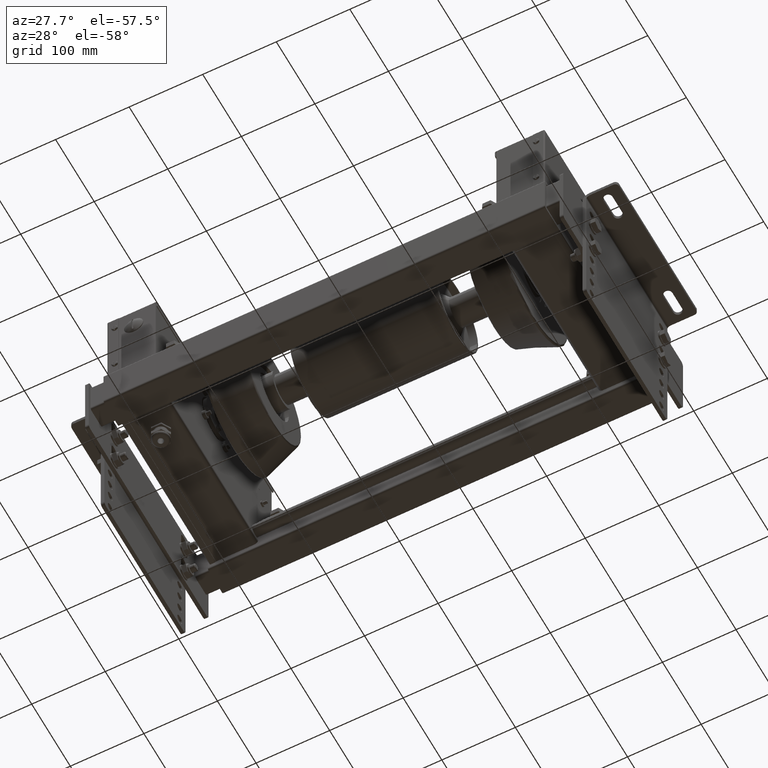
[diagram: clean part render]
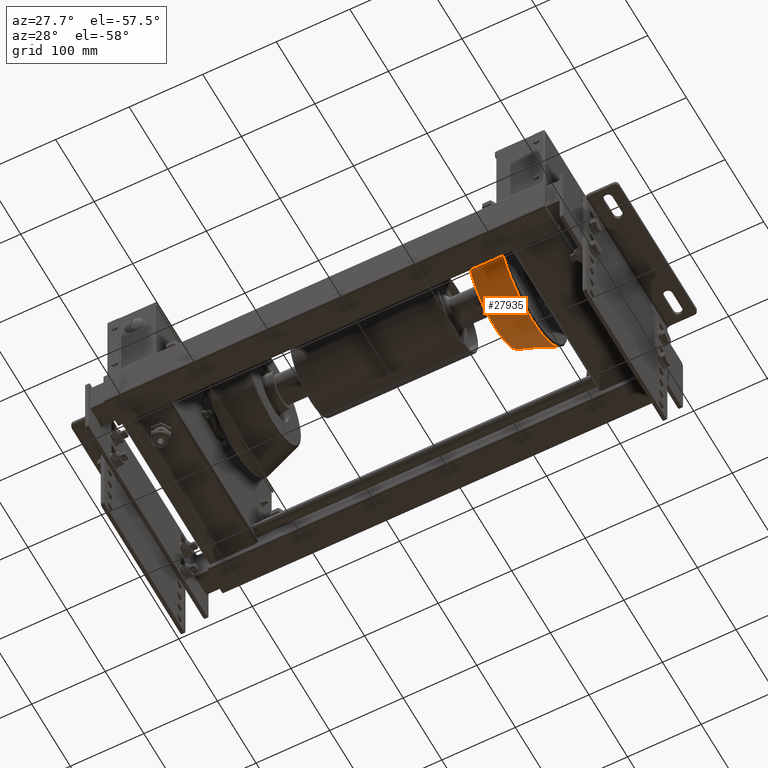
[diagram: same view with one face highlighted and labeled with its STEP entity id]
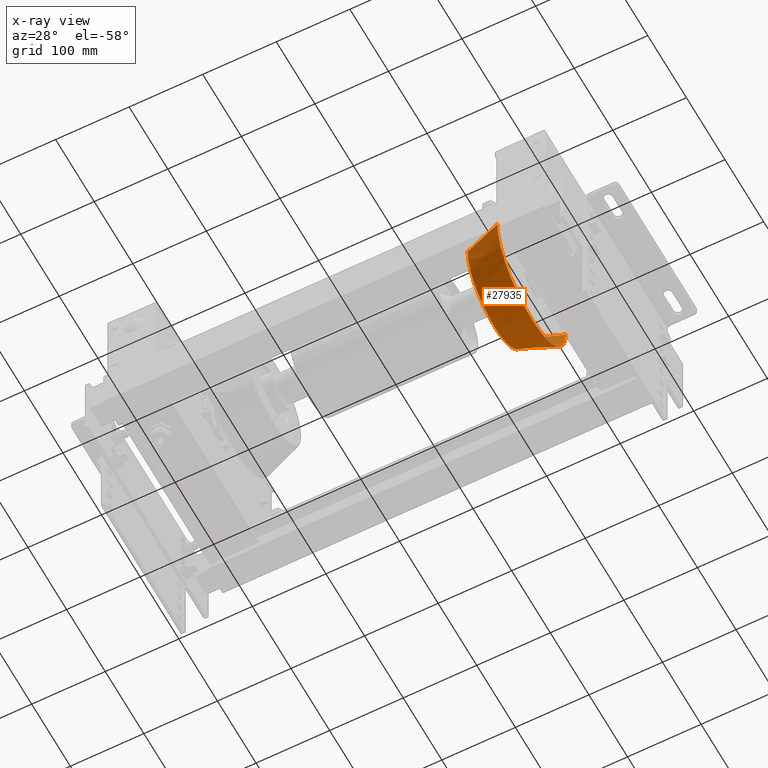
[diagram: x-ray of the same camera — body ghosted, the highlighted face saturated]
A machine part, auxiliary view. The second image highlights one B-rep face of the part: STEP entity #27935.
The next image is the same camera in x-ray: the body ghosted, the highlighted face saturated — about 18% of this face is hidden behind the body in this view.
In plain terms, the highlighted conical surface has half-angle 20 deg.
Its self-contained STEP definition (entity closure, byte-faithful):
#27840=CARTESIAN_POINT('',(24.144949641685770,0.0,-88.779459620092780));
#27841=VERTEX_POINT('',#27840);
#27867=CARTESIAN_POINT('',(24.144949641685777,-88.779459620092751,-1.087235E-014));
#27868=VERTEX_POINT('',#27867);
#27876=CARTESIAN_POINT('',(24.144949641685770,0.0,0.0));
#27877=DIRECTION('',(1.0,0.0,0.0));
#27878=DIRECTION('',(0.0,1.0,0.0));
#27879=AXIS2_PLACEMENT_3D('',#27876,#27877,#27878);
#27880=CIRCLE('',#27879,88.779459620092780);
#27881=EDGE_CURVE('',#27868,#27841,#27880,.T.);
#27886=CARTESIAN_POINT('',(-0.855050358314173,0.0,0.0));
#27887=DIRECTION('',(1.0,0.0,0.0));
#27888=DIRECTION('',(0.0,1.0,0.0));
#27889=AXIS2_PLACEMENT_3D('',#27886,#27887,#27888);
#27890=CONICAL_SURFACE('',#27889,79.680203763437760,19.999999999999908);
#27891=CARTESIAN_POINT('',(24.144949641685770,88.779459620092780,0.0));
#27892=VERTEX_POINT('',#27891);
#27893=CARTESIAN_POINT('',(-25.855050358314116,70.580947906782797,0.0));
#27894=VERTEX_POINT('',#27893);
#27895=CARTESIAN_POINT('',(24.144949641685770,88.779459620092780,0.0));
#27896=DIRECTION('',(-0.939692620785909,-0.342020143325667,0.0));
#27897=VECTOR('',#27896,53.208888623795453);
#27898=LINE('',#27895,#27897);
#27899=EDGE_CURVE('',#27892,#27894,#27898,.T.);
#27900=ORIENTED_EDGE('',*,*,#27899,.F.);
#27901=CARTESIAN_POINT('',(24.144949641685770,0.0,0.0));
#27902=DIRECTION('',(1.0,0.0,0.0));
#27903=DIRECTION('',(0.0,1.0,0.0));
#27904=AXIS2_PLACEMENT_3D('',#27901,#27902,#27903);
#27905=CIRCLE('',#27904,88.779459620092780);
#27906=EDGE_CURVE('',#27841,#27892,#27905,.T.);
#27907=ORIENTED_EDGE('',*,*,#27906,.F.);
#27908=ORIENTED_EDGE('',*,*,#27881,.F.);
#27909=CARTESIAN_POINT('',(-25.855050358314102,-70.580947906782768,-8.643673E-015));
#27910=VERTEX_POINT('',#27909);
#27911=CARTESIAN_POINT('',(24.144949641685777,-88.779459620092751,-1.087235E-014));
#27912=DIRECTION('',(-0.939692620785909,0.342020143325667,4.188539E-017));
#27913=VECTOR('',#27912,53.208888623795445);
#27914=LINE('',#27911,#27913);
#27915=EDGE_CURVE('',#27868,#27910,#27914,.T.);
#27916=ORIENTED_EDGE('',*,*,#27915,.T.);
#27917=CARTESIAN_POINT('',(-25.855050358314116,0.0,-70.580947906782797));
#27918=VERTEX_POINT('',#27917);
#27919=CARTESIAN_POINT('',(-25.855050358314116,0.0,0.0));
#27920=DIRECTION('',(1.0,0.0,0.0));
#27921=DIRECTION('',(0.0,1.0,0.0));
#27922=AXIS2_PLACEMENT_3D('',#27919,#27920,#27921);
#27923=CIRCLE('',#27922,70.580947906782797);
#27924=EDGE_CURVE('',#27910,#27918,#27923,.T.);
#27925=ORIENTED_EDGE('',*,*,#27924,.T.);
#27926=CARTESIAN_POINT('',(-25.855050358314116,0.0,0.0));
#27927=DIRECTION('',(1.0,0.0,0.0));
#27928=DIRECTION('',(0.0,1.0,0.0));
#27929=AXIS2_PLACEMENT_3D('',#27926,#27927,#27928);
#27930=CIRCLE('',#27929,70.580947906782797);
#27931=EDGE_CURVE('',#27918,#27894,#27930,.T.);
#27932=ORIENTED_EDGE('',*,*,#27931,.T.);
#27933=EDGE_LOOP('',(#27900,#27907,#27908,#27916,#27925,#27932));
#27934=FACE_OUTER_BOUND('',#27933,.T.);
#27935=ADVANCED_FACE('',(#27934),#27890,.T.);